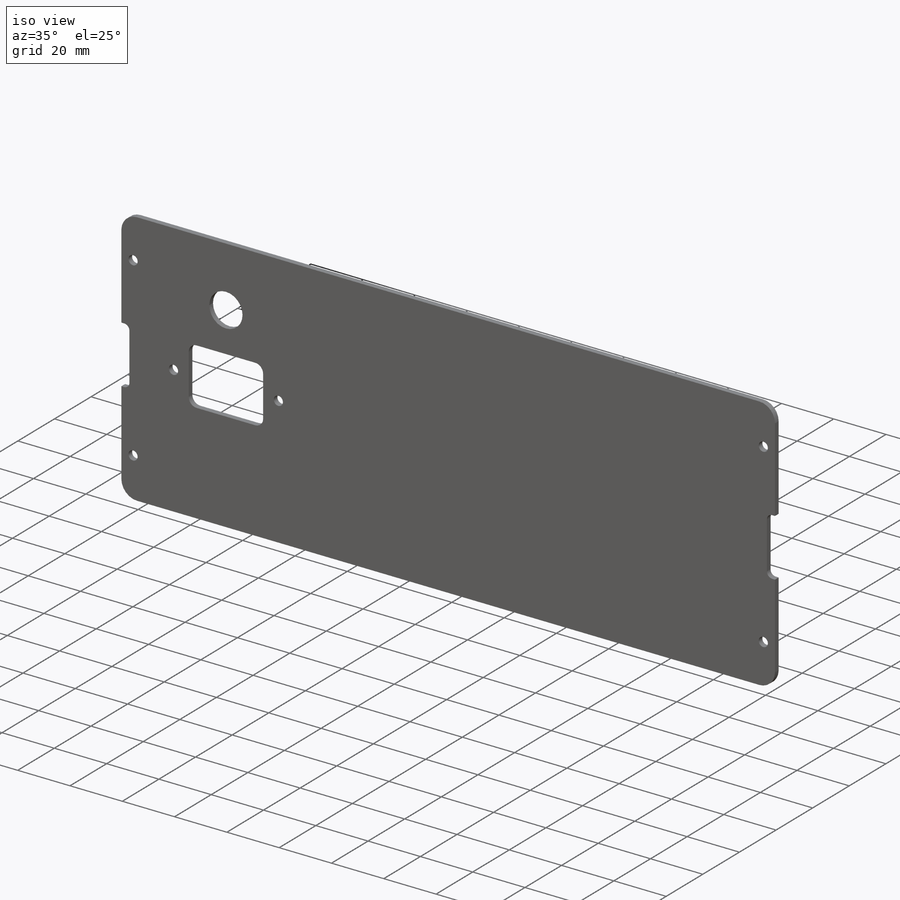
[diagram: iso view]
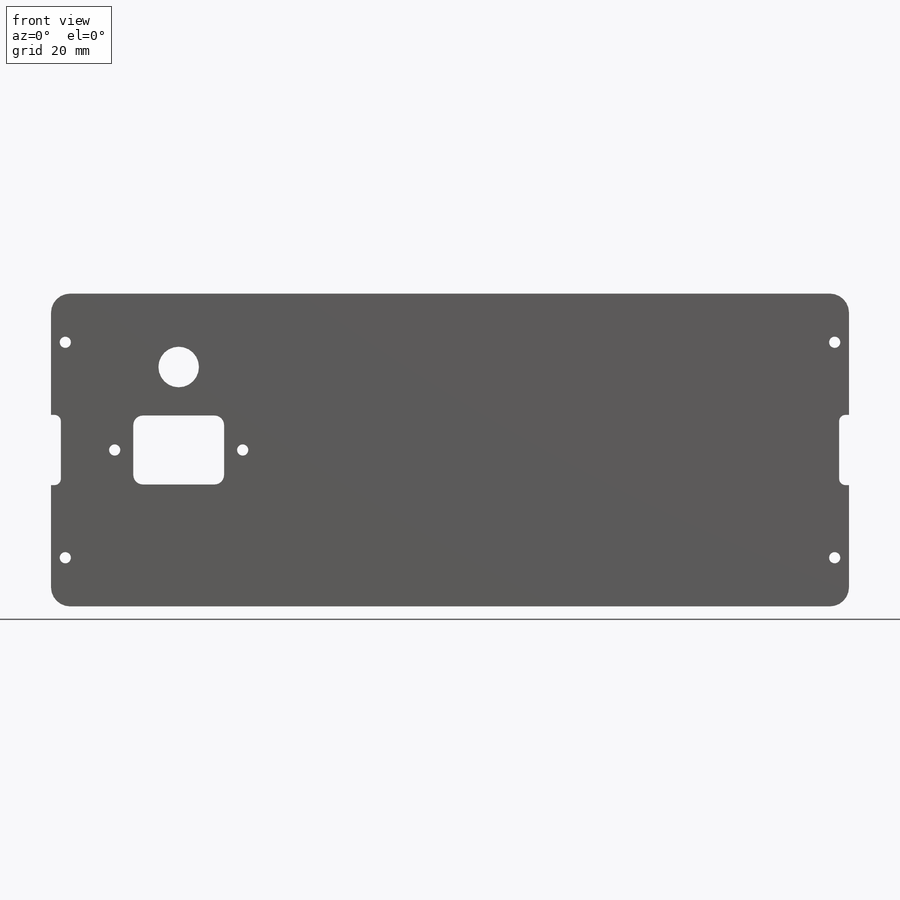
[diagram: front view]
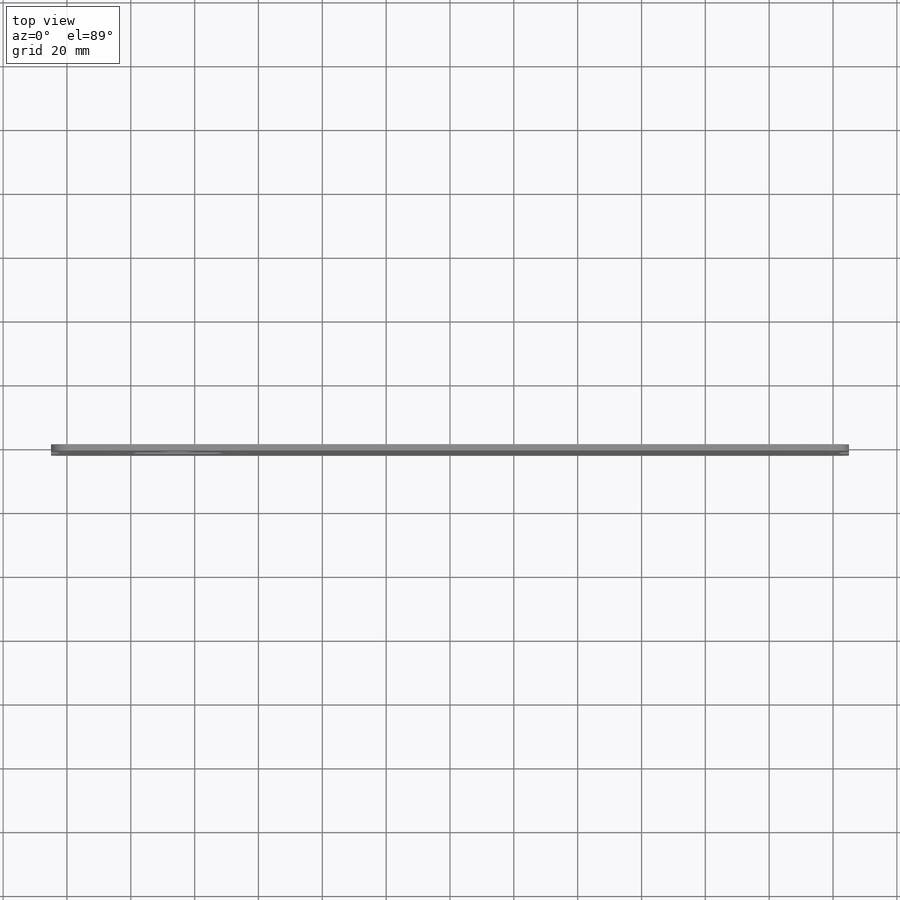
[diagram: top view]
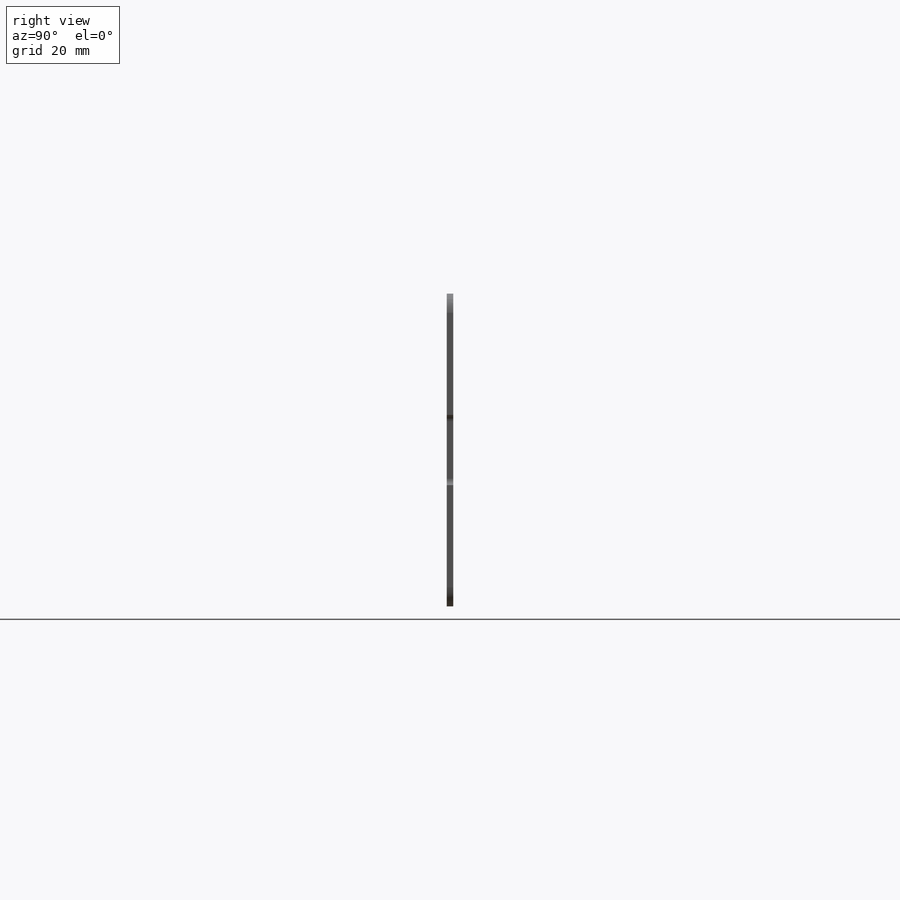
[diagram: right view]
SOLIDWORKS PART (.sldprt)
format: sldprt  version: not decoded by parser v0  size: 640,000 bytes
history: native  units: mm
features: sketch x7, fillet x4, plane x3, cut_extrude x3, material x1, extrude x1, hole x1 + 3 further entries (+7 scaffold rows collapsed)
feature tree (30):
  scaffold x7  (default folders/planes/origin — collapsed)
  material  "Material <not specified>"
  "곡면 바디"
  "솔리드 바디"
  plane  "정면"
  plane  "윗면"
  plane  "우측면"
  "원점"
  sketch  "Sketch1"  dims[c1.D1=~75.529744mm c1.D2=~181.689062mm c2.D1=250.0mm c2.D2=98.0mm]
  extrude  "Boss-Extrude1"  Depth=2mm
  fillet  "Fillet1"  Radius=6mm
  sketch  "Sketch2"  dims[c1.D1=~22.018313mm c1.D2=~15.217756mm c2.D1=22.0mm c2.D2=3.1mm]
  cut_extrude  "Cut-Extrude1"  Depth=12mm
  fillet  "Fillet2"  Radius=2mm
  hole  "Ø3.5 (3.5) Diameter Hole1"  Diameter=3.5mm Depth=2mm
  sketch  "Sketch4"  dims[D1=67.5mm D2=4.48mm D3=4.48mm D4=33.75mm]
  sketch  "Sketch3"  dims[hole-wizard template sketch: 60 standard entries collapsed; hole parameters kept: c18.Thru Hole Depth=2.0mm]
  sketch  "Sketch7"  dims[c1.D1=3.5mm c1.D2=3.5mm c1.D8=12.7mm c2.D1=~18.264812mm c2.D2=~27.611634mm c2.D3=40.1mm c2.D4=20.05mm c2.D5=28.45mm c2.D6=21.6mm c2.D7=40.0mm c2.D9=26.0mm]
  cut_extrude  "Cut-Extrude3"  Depth=10mm
  fillet  "Fillet4"  Radius=3mm
  sketch  "Sketch5"  dims[c1.D3=~8.323998mm c1.D1=~36.654155mm c1.D2=~218.675712mm c2.D1=180.0mm c2.D2=40.0mm c2.D3=~90.010659mm]
  sketch  "Sketch6"  dims[c1.D1=3.5mm c1.D6=3.5mm c1.D8=~9.493635mm c1.D9=7.71mm c1.D13=25.0mm c1.D15=6.0mm c1.D2=3.0mm c1.D3=3.0mm c1.D4=3.0mm c1.D5=3.0mm c1.D7=8.0mm c2.D8=16.5mm c2.D10=~23.778343mm c2.D11=~53.122158mm c3.D10=30.0mm c3.D11=72.8mm c3.D12=22.8mm c3.D14=135.0mm c3.D16=160.0mm c3.D17=~16.660988mm c3.D18=~10.984372mm c4.D17=12.9mm c4.D18=19.2mm c4.D19=15.0mm]
  cut_extrude  "Cut-Extrude2"  Depth=12mm
  fillet  "Fillet3"  Radius=2mm
decode coverage: 16 of 16 modeling features carry decoded parameters; 3 rows unclassified (native names shown)
note: ~ marks probable driven/reference dimensions
note: suppression state not decoded; provenance and decode notes live in map.json
